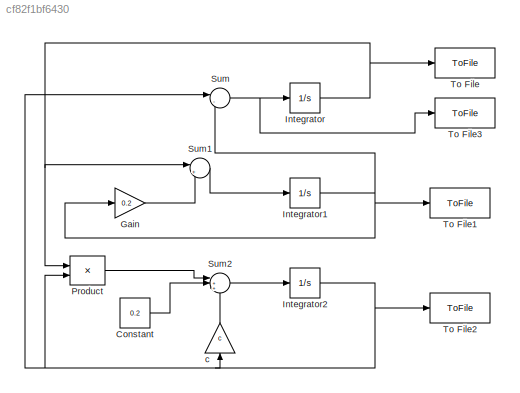
MODEL slx_cf82f1bf6430
KIND model
CONFIG AbsTol = auto
CONFIG EnableMultiTasking = on
CONFIG FixedStep = auto
CONFIG MaxStep = auto
CONFIG MinStep = auto
CONFIG RelTol = 1e-3
CONFIG SampleTimeConstraint = Unconstrained
CONFIG SolverName = ode45
CONFIG StartTime = 0.0
CONFIG StopTime = 100
BLOCK [Constant] Constant
  Value = 0.2
BLOCK [Gain] Gain
  Gain = 0.2
  OutDataTypeStr = Inherit: Same as input
  ParamDataTypeStr = Inherit: Same as input
  SaturateOnIntegerOverflow = on
BLOCK [Integrator] Integrator
  InitialCondition = 0.3
  Ports = [1, 1]
BLOCK [Integrator] Integrator1
  InitialCondition = 0.23
  Ports = [1, 1]
BLOCK [Integrator] Integrator2
  InitialCondition = 0.8
  Ports = [1, 1]
BLOCK [Product] Product
  OutDataTypeStr = Inherit: Same as first input
  Ports = [2, 1]
  SaturateOnIntegerOverflow = on
BLOCK [Sum] Sum
  Inputs = |--
  Ports = [2, 1]
  SaturateOnIntegerOverflow = on
BLOCK [Sum] Sum1
  Inputs = |++
  Ports = [2, 1]
  SaturateOnIntegerOverflow = on
BLOCK [Sum] Sum2
  Inputs = |++-
  Ports = [3, 1]
  SaturateOnIntegerOverflow = on
BLOCK [ToFile] To File
  Filename = x.mat
  MatrixName = x
  Ports = [1]
  SampleTime = 0.01
BLOCK [ToFile] To File1
  Filename = y.mat
  MatrixName = y
  Ports = [1]
  SampleTime = 0.01
BLOCK [ToFile] To File2
  Filename = z.mat
  MatrixName = z
  Ports = [1]
  SampleTime = 0.01
BLOCK [ToFile] To File3
  Filename = xdot.mat
  MatrixName = xdot
  Ports = [1]
  SampleTime = 0.01
BLOCK [Gain] c
  Gain = c
  NameLocation = right
  OutDataTypeStr = Inherit: Same as input
  ParamDataTypeStr = Inherit: Same as input
  SaturateOnIntegerOverflow = on
LINE Constant:1 -> Sum2:2
LINE Gain:1 -> Sum1:2
NET Integrator1:1 -> Gain:1, Sum:2, To File1:1
NET Integrator2:1 -> Product:2, Sum:1, To File2:1, c:1
NET Integrator:1 -> Product:1, Sum1:1, To File:1
LINE Product:1 -> Sum2:1
LINE Sum1:1 -> Integrator1:1
LINE Sum2:1 -> Integrator2:1
NET Sum:1 -> Integrator:1, To File3:1
LINE c:1 -> Sum2:3
note: NET lines group one-source signal fan-out (src -> all destinations, sorted); 1:1 wires keep LINE
